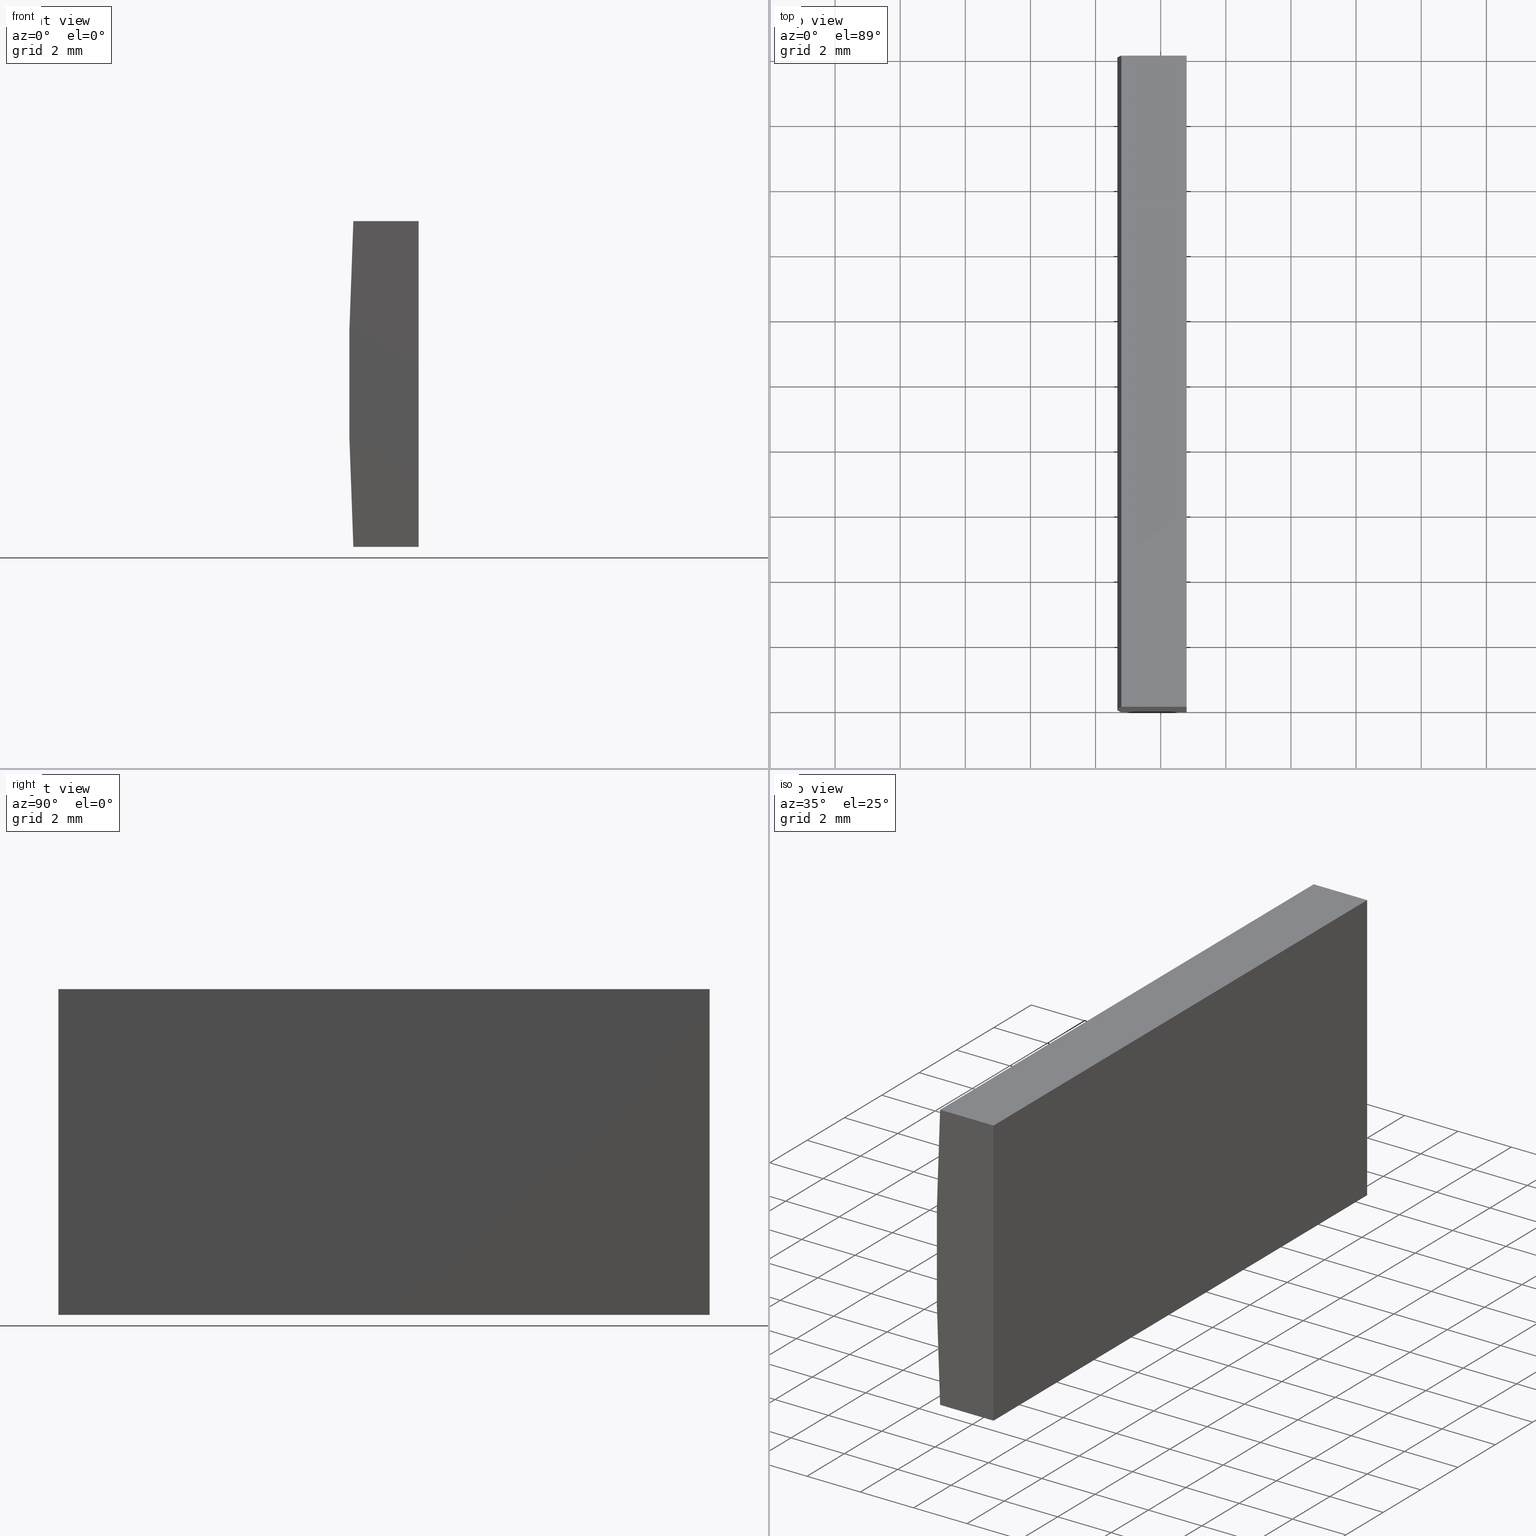
[diagram: canonical four-view strip — front | top / right | iso, engineering-drawing reading convention]
A machine part, canonical four-view strip (front | top / right | iso — engineering-drawing reading convention). The complete STEP part file that produces these views, byte-faithful:
ISO-10303-21;
HEADER;
FILE_DESCRIPTION (( 'STEP AP214' ),
    '1' );
FILE_NAME ('155287.STEP',
    '2019-06-26T02:46:11',
    ( 'user' ),
    ( '΢���й�' ),
    'SwSTEP 2.0',
    'SolidWorks 2016',
    '' );
FILE_SCHEMA (( 'AUTOMOTIVE_DESIGN' ));
ENDSEC;

DATA;
#1 = PRODUCT_RELATED_PRODUCT_CATEGORY ( 'part', '', ( #69 ) ) ;
#2 = MECHANICAL_DESIGN_GEOMETRIC_PRESENTATION_REPRESENTATION (  '', ( #47 ), #119 ) ;
#3 = PLANE ( 'NONE',  #160 ) ;
#4 = VECTOR ( 'NONE', #116, 1000.000000000000000 ) ;
#5 = ORIENTED_EDGE ( 'NONE', *, *, #68, .T. ) ;
#6 = CARTESIAN_POINT ( 'NONE',  ( -87.20838012971630300, 20.00000000000000000, -5.000000000000000000 ) ) ;
#7 = EDGE_CURVE ( 'NONE', #204, #153, #84, .T. ) ;
#8 = DIRECTION ( 'NONE',  ( 0.0000000000000000000, 1.000000000000000000, 0.0000000000000000000 ) ) ;
#9 = FILL_AREA_STYLE ('',( #192 ) ) ;
#10 = DIRECTION ( 'NONE',  ( 0.0000000000000000000, -0.0000000000000000000, 1.000000000000000000 ) ) ;
#11 = MANIFOLD_SOLID_BREP ( '͹̨-����1', #52 ) ;
#12 =( NAMED_UNIT ( * ) PLANE_ANGLE_UNIT ( ) SI_UNIT ( $, .RADIAN. ) );
#13 = DIRECTION ( 'NONE',  ( -0.0000000000000000000, -1.000000000000000000, -0.0000000000000000000 ) ) ;
#14 = CARTESIAN_POINT ( 'NONE',  ( -85.20479566514873700, 20.00000000000000000, -4.999999999999987600 ) ) ;
#15 = ORIENTED_EDGE ( 'NONE', *, *, #73, .F. ) ;
#16 = DIRECTION ( 'NONE',  ( 0.0000000000000000000, 0.0000000000000000000, 1.000000000000000000 ) ) ;
#17 = EDGE_LOOP ( 'NONE', ( #179, #176, #15, #140 ) ) ;
#18 = VECTOR ( 'NONE', #13, 1000.000000000000000 ) ;
#19 = FACE_OUTER_BOUND ( 'NONE', #161, .T. ) ;
#20 = CARTESIAN_POINT ( 'NONE',  ( 4.355204334851265500, 20.00000000000000000, 4.286263797015675000E-017 ) ) ;
#21 = FILL_AREA_STYLE ('',( #171 ) ) ;
#22 =( GEOMETRIC_REPRESENTATION_CONTEXT ( 3 ) GLOBAL_UNCERTAINTY_ASSIGNED_CONTEXT ( ( #49 ) ) GLOBAL_UNIT_ASSIGNED_CONTEXT ( ( #113, #12, #199 ) ) REPRESENTATION_CONTEXT ( 'NONE', 'WORKASPACE' ) );
#23 = DIRECTION ( 'NONE',  ( 1.000000000000000000, 0.0000000000000000000, 6.060670037416406300E-015 ) ) ;
#24 = VERTEX_POINT ( 'NONE', #25 ) ;
#25 = CARTESIAN_POINT ( 'NONE',  ( -85.20479566514873700, 0.0000000000000000000, -4.999999999999987600 ) ) ;
#26 =( NAMED_UNIT ( * ) SI_UNIT ( $, .STERADIAN. ) SOLID_ANGLE_UNIT ( ) );
#27 = CARTESIAN_POINT ( 'NONE',  ( -87.20838012971630300, 20.00000000000000000, 5.000000000000000000 ) ) ;
#28 = COLOUR_RGB ( '',1.000000000000000000, 1.000000000000000000, 1.000000000000000000 ) ;
#29 = DIRECTION ( 'NONE',  ( 0.0000000000000000000, 1.000000000000000000, 0.0000000000000000000 ) ) ;
#30 = LINE ( 'NONE', #155, #147 ) ;
#31 = DIRECTION ( 'NONE',  ( 0.0000000000000000000, 1.000000000000000000, 0.0000000000000000000 ) ) ;
#32 = PRODUCT_DEFINITION ( 'δ֪', '', #127, #51 ) ;
#33 = PLANE ( 'NONE',  #162 ) ;
#34 = PRODUCT_DEFINITION_SHAPE ( 'NONE', 'NONE',  #32 ) ;
#35 = DIRECTION ( 'NONE',  ( 1.000000000000000000, 0.0000000000000000000, 0.0000000000000000000 ) ) ;
#36 = FACE_OUTER_BOUND ( 'NONE', #200, .T. ) ;
#37 = SURFACE_STYLE_USAGE ( .BOTH. , #143 ) ;
#38 = EDGE_CURVE ( 'NONE', #146, #204, #157, .T. ) ;
#39 = SHAPE_DEFINITION_REPRESENTATION ( #34, #159 ) ;
#40 = COLOUR_RGB ( '',1.000000000000000000, 1.000000000000000000, 1.000000000000000000 ) ;
#41 = CARTESIAN_POINT ( 'NONE',  ( -85.20479566514873700, 20.00000000000000000, -4.999999999999987600 ) ) ;
#42 = ORIENTED_EDGE ( 'NONE', *, *, #93, .T. ) ;
#43 = ADVANCED_FACE ( 'NONE', ( #86 ), #3, .F. ) ;
#44 = DIRECTION ( 'NONE',  ( -1.000000000000000000, -0.0000000000000000000, -6.060670037416406300E-015 ) ) ;
#45 = DIRECTION ( 'NONE',  ( -1.000000000000000000, -0.0000000000000000000, -6.060670037416406300E-015 ) ) ;
#46 = VERTEX_POINT ( 'NONE', #172 ) ;
#47 = STYLED_ITEM ( 'NONE', ( #201 ), #11 ) ;
#48 =( NAMED_UNIT ( * ) PLANE_ANGLE_UNIT ( ) SI_UNIT ( $, .RADIAN. ) );
#49 = UNCERTAINTY_MEASURE_WITH_UNIT (LENGTH_MEASURE( 1.000000000000000100E-005 ), #113, 'distance_accuracy_value', 'NONE');
#50 = CARTESIAN_POINT ( 'NONE',  ( -87.20838012971630300, 20.00000000000000000, -5.000000000000000000 ) ) ;
#51 = PRODUCT_DEFINITION_CONTEXT ( 'detailed design', #59, 'design' ) ;
#52 = CLOSED_SHELL ( 'NONE', ( #133, #43, #203, #114, #88, #108 ) ) ;
#53 = UNCERTAINTY_MEASURE_WITH_UNIT (LENGTH_MEASURE( 1.000000000000000100E-005 ), #183, 'distance_accuracy_value', 'NONE');
#54 = VECTOR ( 'NONE', #166, 1000.000000000000000 ) ;
#55 = ORIENTED_EDGE ( 'NONE', *, *, #38, .F. ) ;
#56 = EDGE_CURVE ( 'NONE', #62, #46, #175, .T. ) ;
#57 = CARTESIAN_POINT ( 'NONE',  ( -87.20838012971630300, 20.00000000000000000, 5.000000000000000000 ) ) ;
#58 = VECTOR ( 'NONE', #134, 1000.000000000000000 ) ;
#59 = APPLICATION_CONTEXT ( 'automotive_design' ) ;
#60 = CARTESIAN_POINT ( 'NONE',  ( -85.20479566514873700, 0.0000000000000000000, 5.000000000000000000 ) ) ;
#61 = AXIS2_PLACEMENT_3D ( 'NONE', #145, #163, #107 ) ;
#62 = VERTEX_POINT ( 'NONE', #178 ) ;
#63 = SURFACE_STYLE_FILL_AREA ( #21 ) ;
#64 = APPLICATION_PROTOCOL_DEFINITION ( 'draft international standard', 'automotive_design', 1998, #59 ) ;
#65 = EDGE_CURVE ( 'NONE', #146, #24, #124, .T. ) ;
#66 = ORIENTED_EDGE ( 'NONE', *, *, #56, .T. ) ;
#67 = CARTESIAN_POINT ( 'NONE',  ( -87.20838012971630300, 20.00000000000000000, -5.000000000000000000 ) ) ;
#68 = EDGE_CURVE ( 'NONE', #46, #186, #190, .T. ) ;
#69 = PRODUCT ( '155287', '155287', '', ( #91 ) ) ;
#70 = AXIS2_PLACEMENT_3D ( 'NONE', #181, #16, #35 ) ;
#71 = ORIENTED_EDGE ( 'NONE', *, *, #7, .F. ) ;
#72 = EDGE_CURVE ( 'NONE', #204, #62, #177, .T. ) ;
#73 = EDGE_CURVE ( 'NONE', #144, #146, #126, .T. ) ;
#74 = CARTESIAN_POINT ( 'NONE',  ( 4.355204334851265500, 0.0000000000000000000, 4.286263797015675000E-017 ) ) ;
#75 = APPLICATION_CONTEXT ( 'automotive_design' ) ;
#76 = PRESENTATION_LAYER_ASSIGNMENT (  '', '', ( #99 ) ) ;
#77 = ORIENTED_EDGE ( 'NONE', *, *, #82, .F. ) ;
#78 = VECTOR ( 'NONE', #44, 1000.000000000000000 ) ;
#79 = DIRECTION ( 'NONE',  ( -1.000000000000000000, 0.0000000000000000000, -0.0000000000000000000 ) ) ;
#80 = DIRECTION ( 'NONE',  ( 0.0000000000000000000, 0.0000000000000000000, -1.000000000000000000 ) ) ;
#81 = ORIENTED_EDGE ( 'NONE', *, *, #38, .T. ) ;
#82 = EDGE_CURVE ( 'NONE', #153, #46, #111, .T. ) ;
#83 = MECHANICAL_DESIGN_GEOMETRIC_PRESENTATION_REPRESENTATION (  '', ( #99 ), #22 ) ;
#84 = LINE ( 'NONE', #67, #58 ) ;
#85 = SURFACE_STYLE_FILL_AREA ( #9 ) ;
#86 = FACE_OUTER_BOUND ( 'NONE', #97, .T. ) ;
#87 = SURFACE_STYLE_USAGE ( .BOTH. , #142 ) ;
#88 = ADVANCED_FACE ( 'NONE', ( #193 ), #117, .T. ) ;
#89 = ORIENTED_EDGE ( 'NONE', *, *, #72, .T. ) ;
#90 = EDGE_CURVE ( 'NONE', #144, #186, #168, .T. ) ;
#91 = PRODUCT_CONTEXT ( 'NONE', #75, 'mechanical' ) ;
#92 = ORIENTED_EDGE ( 'NONE', *, *, #82, .T. ) ;
#93 = EDGE_CURVE ( 'NONE', #24, #153, #109, .T. ) ;
#94 = EDGE_CURVE ( 'NONE', #62, #144, #96, .T. ) ;
#95 = DIRECTION ( 'NONE',  ( 1.000000000000000000, 0.0000000000000000000, 0.0000000000000000000 ) ) ;
#96 = LINE ( 'NONE', #57, #105 ) ;
#97 = EDGE_LOOP ( 'NONE', ( #5, #180, #151, #66 ) ) ;
#98 = DIRECTION ( 'NONE',  ( -6.060670037416406300E-015, 0.0000000000000000000, 1.000000000000000000 ) ) ;
#99 = STYLED_ITEM ( 'NONE', ( #195 ), #159 ) ;
#100 = CARTESIAN_POINT ( 'NONE',  ( 4.355204334851265500, 20.00000000000000000, 4.286263797015675000E-017 ) ) ;
#101 = ORIENTED_EDGE ( 'NONE', *, *, #72, .F. ) ;
#102 = VECTOR ( 'NONE', #45, 1000.000000000000000 ) ;
#103 = CYLINDRICAL_SURFACE ( 'NONE', #189, 91.70000000000000300 ) ;
#104 =( NAMED_UNIT ( * ) PLANE_ANGLE_UNIT ( ) SI_UNIT ( $, .RADIAN. ) );
#105 = VECTOR ( 'NONE', #95, 1000.000000000000000 ) ;
#106 = CARTESIAN_POINT ( 'NONE',  ( -85.20479566514873700, 20.00000000000000000, 5.000000000000000000 ) ) ;
#107 = DIRECTION ( 'NONE',  ( 0.0000000000000000000, -0.0000000000000000000, 1.000000000000000000 ) ) ;
#108 = ADVANCED_FACE ( 'NONE', ( #170 ), #138, .F. ) ;
#109 = LINE ( 'NONE', #118, #78 ) ;
#110 = ORIENTED_EDGE ( 'NONE', *, *, #139, .F. ) ;
#111 = CIRCLE ( 'NONE', #169, 91.70000000000000300 ) ;
#112 =( LENGTH_UNIT ( ) NAMED_UNIT ( * ) SI_UNIT ( .MILLI., .METRE. ) );
#113 =( LENGTH_UNIT ( ) NAMED_UNIT ( * ) SI_UNIT ( .MILLI., .METRE. ) );
#114 = ADVANCED_FACE ( 'NONE', ( #36 ), #33, .F. ) ;
#115 = DIRECTION ( 'NONE',  ( -1.000000000000000000, 0.0000000000000000000, 0.0000000000000000000 ) ) ;
#116 = DIRECTION ( 'NONE',  ( 1.000000000000000000, 0.0000000000000000000, 0.0000000000000000000 ) ) ;
#117 = PLANE ( 'NONE',  #61 ) ;
#118 = CARTESIAN_POINT ( 'NONE',  ( -87.20838012971630300, 0.0000000000000000000, -5.000000000000000000 ) ) ;
#119 =( GEOMETRIC_REPRESENTATION_CONTEXT ( 3 ) GLOBAL_UNCERTAINTY_ASSIGNED_CONTEXT ( ( #135 ) ) GLOBAL_UNIT_ASSIGNED_CONTEXT ( ( #112, #104, #26 ) ) REPRESENTATION_CONTEXT ( 'NONE', 'WORKASPACE' ) );
#120 = DIRECTION ( 'NONE',  ( 0.0000000000000000000, 0.0000000000000000000, 1.000000000000000000 ) ) ;
#121 = ORIENTED_EDGE ( 'NONE', *, *, #7, .T. ) ;
#122 = APPLICATION_PROTOCOL_DEFINITION ( 'draft international standard', 'automotive_design', 1998, #75 ) ;
#123 =( GEOMETRIC_REPRESENTATION_CONTEXT ( 3 ) GLOBAL_UNCERTAINTY_ASSIGNED_CONTEXT ( ( #53 ) ) GLOBAL_UNIT_ASSIGNED_CONTEXT ( ( #183, #48, #182 ) ) REPRESENTATION_CONTEXT ( 'NONE', 'WORKASPACE' ) );
#124 = LINE ( 'NONE', #197, #18 ) ;
#125 = CARTESIAN_POINT ( 'NONE',  ( -87.20838012971630300, 20.00000000000000000, 5.000000000000000000 ) ) ;
#126 = LINE ( 'NONE', #41, #188 ) ;
#127 = PRODUCT_DEFINITION_FORMATION_WITH_SPECIFIED_SOURCE ( '�κ�', '', #69, .NOT_KNOWN. ) ;
#128 = AXIS2_PLACEMENT_3D ( 'NONE', #14, #115, #149 ) ;
#129 = CARTESIAN_POINT ( 'NONE',  ( -85.20479566514873700, 20.00000000000000000, -4.999999999999987600 ) ) ;
#130 = AXIS2_PLACEMENT_3D ( 'NONE', #100, #31, #120 ) ;
#131 = ORIENTED_EDGE ( 'NONE', *, *, #56, .F. ) ;
#132 = CARTESIAN_POINT ( 'NONE',  ( -87.20838012971630300, 0.0000000000000000000, 5.000000000000000000 ) ) ;
#133 = ADVANCED_FACE ( 'NONE', ( #19 ), #103, .T. ) ;
#134 = DIRECTION ( 'NONE',  ( -0.0000000000000000000, -1.000000000000000000, -0.0000000000000000000 ) ) ;
#135 = UNCERTAINTY_MEASURE_WITH_UNIT (LENGTH_MEASURE( 1.000000000000000100E-005 ), #112, 'distance_accuracy_value', 'NONE');
#136 = DIRECTION ( 'NONE',  ( -0.0000000000000000000, -1.000000000000000000, -0.0000000000000000000 ) ) ;
#137 = ORIENTED_EDGE ( 'NONE', *, *, #68, .F. ) ;
#138 = PLANE ( 'NONE',  #165 ) ;
#139 = EDGE_CURVE ( 'NONE', #186, #24, #30, .T. ) ;
#140 = ORIENTED_EDGE ( 'NONE', *, *, #90, .T. ) ;
#141 = ORIENTED_EDGE ( 'NONE', *, *, #65, .T. ) ;
#142 = SURFACE_SIDE_STYLE ('',( #63 ) ) ;
#143 = SURFACE_SIDE_STYLE ('',( #85 ) ) ;
#144 = VERTEX_POINT ( 'NONE', #106 ) ;
#145 = CARTESIAN_POINT ( 'NONE',  ( 4.355204334851265500, 20.00000000000000000, 4.286263797015675000E-017 ) ) ;
#146 = VERTEX_POINT ( 'NONE', #129 ) ;
#147 = VECTOR ( 'NONE', #185, 1000.000000000000000 ) ;
#148 = ORIENTED_EDGE ( 'NONE', *, *, #73, .T. ) ;
#149 = DIRECTION ( 'NONE',  ( 0.0000000000000000000, 0.0000000000000000000, 1.000000000000000000 ) ) ;
#150 = FACE_OUTER_BOUND ( 'NONE', #17, .T. ) ;
#151 = ORIENTED_EDGE ( 'NONE', *, *, #94, .F. ) ;
#152 = PRESENTATION_LAYER_ASSIGNMENT (  '', '', ( #47 ) ) ;
#153 = VERTEX_POINT ( 'NONE', #202 ) ;
#154 = CARTESIAN_POINT ( 'NONE',  ( 4.355204334851265500, 0.0000000000000000000, 4.286263797015675000E-017 ) ) ;
#155 = CARTESIAN_POINT ( 'NONE',  ( -85.20479566514873700, 0.0000000000000000000, -4.999999999999987600 ) ) ;
#156 = EDGE_LOOP ( 'NONE', ( #77, #191, #110, #137 ) ) ;
#157 = LINE ( 'NONE', #6, #102 ) ;
#158 = DIRECTION ( 'NONE',  ( 0.0000000000000000000, 0.0000000000000000000, -1.000000000000000000 ) ) ;
#159 = ADVANCED_BREP_SHAPE_REPRESENTATION ( '155287', ( #11, #70 ), #123 ) ;
#160 = AXIS2_PLACEMENT_3D ( 'NONE', #125, #158, #79 ) ;
#161 = EDGE_LOOP ( 'NONE', ( #92, #131, #101, #121 ) ) ;
#162 = AXIS2_PLACEMENT_3D ( 'NONE', #50, #98, #23 ) ;
#163 = DIRECTION ( 'NONE',  ( 0.0000000000000000000, 1.000000000000000000, 0.0000000000000000000 ) ) ;
#164 = VECTOR ( 'NONE', #187, 1000.000000000000000 ) ;
#165 = AXIS2_PLACEMENT_3D ( 'NONE', #154, #29, #10 ) ;
#166 = DIRECTION ( 'NONE',  ( -0.0000000000000000000, -1.000000000000000000, -0.0000000000000000000 ) ) ;
#167 = DIRECTION ( 'NONE',  ( -0.0000000000000000000, -0.0000000000000000000, -1.000000000000000000 ) ) ;
#168 = LINE ( 'NONE', #194, #164 ) ;
#169 = AXIS2_PLACEMENT_3D ( 'NONE', #74, #8, #173 ) ;
#170 = FACE_OUTER_BOUND ( 'NONE', #156, .T. ) ;
#171 = FILL_AREA_STYLE_COLOUR ( '', #28 ) ;
#172 = CARTESIAN_POINT ( 'NONE',  ( -87.20838012971630300, 0.0000000000000000000, 5.000000000000000000 ) ) ;
#173 = DIRECTION ( 'NONE',  ( 0.0000000000000000000, 0.0000000000000000000, 1.000000000000000000 ) ) ;
#174 = PLANE ( 'NONE',  #128 ) ;
#175 = LINE ( 'NONE', #27, #54 ) ;
#176 = ORIENTED_EDGE ( 'NONE', *, *, #65, .F. ) ;
#177 = CIRCLE ( 'NONE', #130, 91.70000000000000300 ) ;
#178 = CARTESIAN_POINT ( 'NONE',  ( -87.20838012971630300, 20.00000000000000000, 5.000000000000000000 ) ) ;
#179 = ORIENTED_EDGE ( 'NONE', *, *, #139, .T. ) ;
#180 = ORIENTED_EDGE ( 'NONE', *, *, #90, .F. ) ;
#181 = CARTESIAN_POINT ( 'NONE',  ( 0.0000000000000000000, 0.0000000000000000000, 0.0000000000000000000 ) ) ;
#182 =( NAMED_UNIT ( * ) SI_UNIT ( $, .STERADIAN. ) SOLID_ANGLE_UNIT ( ) );
#183 =( LENGTH_UNIT ( ) NAMED_UNIT ( * ) SI_UNIT ( .MILLI., .METRE. ) );
#184 = CARTESIAN_POINT ( 'NONE',  ( -87.20838012971630300, 20.00000000000000000, -5.000000000000000000 ) ) ;
#185 = DIRECTION ( 'NONE',  ( -0.0000000000000000000, -0.0000000000000000000, -1.000000000000000000 ) ) ;
#186 = VERTEX_POINT ( 'NONE', #60 ) ;
#187 = DIRECTION ( 'NONE',  ( -0.0000000000000000000, -1.000000000000000000, -0.0000000000000000000 ) ) ;
#188 = VECTOR ( 'NONE', #167, 1000.000000000000000 ) ;
#189 = AXIS2_PLACEMENT_3D ( 'NONE', #20, #136, #80 ) ;
#190 = LINE ( 'NONE', #132, #4 ) ;
#191 = ORIENTED_EDGE ( 'NONE', *, *, #93, .F. ) ;
#192 = FILL_AREA_STYLE_COLOUR ( '', #40 ) ;
#193 = FACE_OUTER_BOUND ( 'NONE', #196, .T. ) ;
#194 = CARTESIAN_POINT ( 'NONE',  ( -85.20479566514873700, 20.00000000000000000, 5.000000000000000000 ) ) ;
#195 = PRESENTATION_STYLE_ASSIGNMENT (( #37 ) ) ;
#196 = EDGE_LOOP ( 'NONE', ( #89, #198, #148, #81 ) ) ;
#197 = CARTESIAN_POINT ( 'NONE',  ( -85.20479566514873700, 20.00000000000000000, -4.999999999999987600 ) ) ;
#198 = ORIENTED_EDGE ( 'NONE', *, *, #94, .T. ) ;
#199 =( NAMED_UNIT ( * ) SI_UNIT ( $, .STERADIAN. ) SOLID_ANGLE_UNIT ( ) );
#200 = EDGE_LOOP ( 'NONE', ( #42, #71, #55, #141 ) ) ;
#201 = PRESENTATION_STYLE_ASSIGNMENT (( #87 ) ) ;
#202 = CARTESIAN_POINT ( 'NONE',  ( -87.20838012971630300, 0.0000000000000000000, -5.000000000000000000 ) ) ;
#203 = ADVANCED_FACE ( 'NONE', ( #150 ), #174, .F. ) ;
#204 = VERTEX_POINT ( 'NONE', #184 ) ;
ENDSEC;
END-ISO-10303-21;
